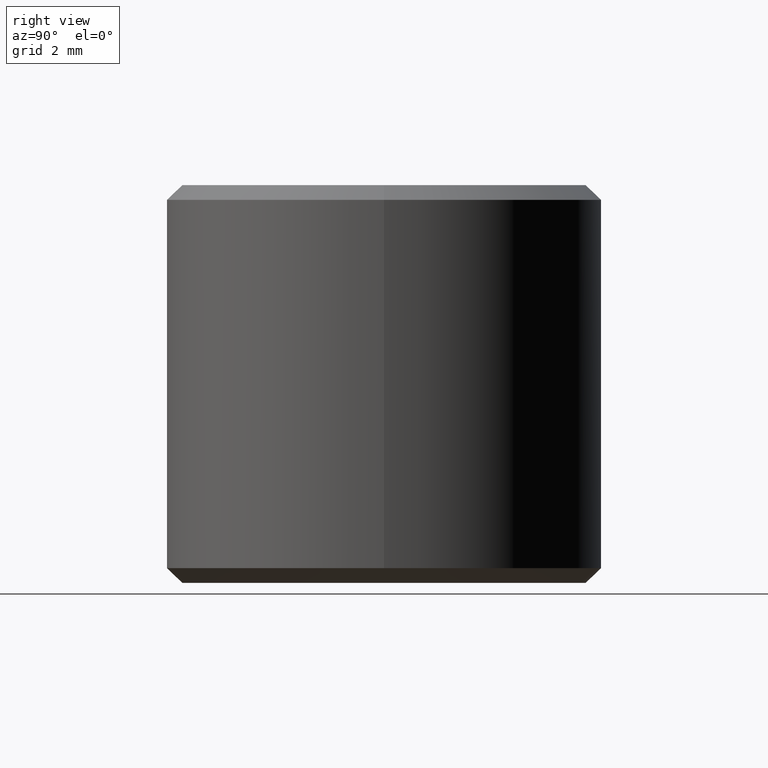
[diagram: clean part render]
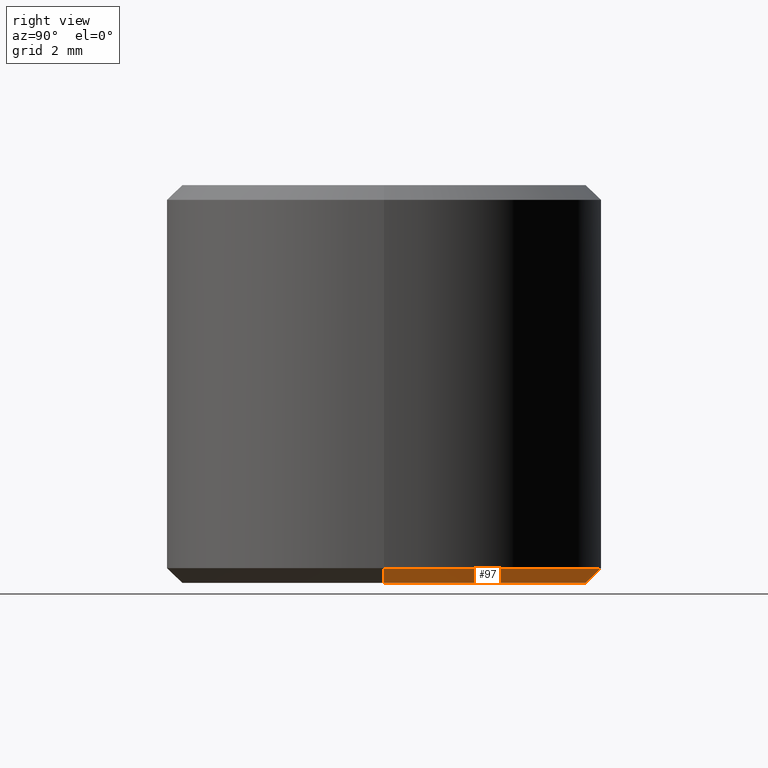
[diagram: same view with one face highlighted and labeled with its STEP entity id]
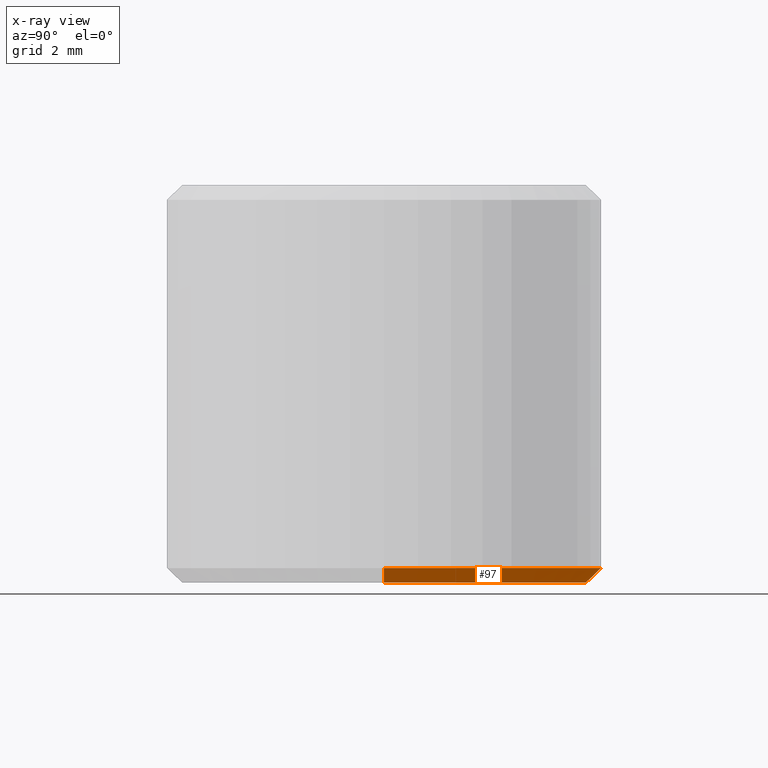
[diagram: x-ray of the same camera — body ghosted, the highlighted face saturated]
A machine part, right view. The second image highlights one B-rep face of the part: STEP entity #97.
The next image is the same camera in x-ray: the body ghosted, the highlighted face saturated — about 0% of this face is hidden behind the body in this view.
In plain terms, the highlighted conical surface has half-angle 45 deg.
Its self-contained STEP definition (entity closure, byte-faithful):
#4 = ORIENTED_EDGE ( 'NONE', *, *, #283, .F. ) ;
#7 = CARTESIAN_POINT ( 'NONE',  ( 0.0000000000000000000, 0.1111111111113758500, 2.255140518769849200E-013 ) ) ;
#10 = CARTESIAN_POINT ( 'NONE',  ( 5.999999999999958300, 0.1111111111113758500, 0.4074074074076027300 ) ) ;
#14 = ORIENTED_EDGE ( 'NONE', *, *, #251, .T. ) ;
#26 = VECTOR ( 'NONE', #225, 1000.000000000000000 ) ;
#31 = DIRECTION ( 'NONE',  ( -0.0000000000000000000, -0.0000000000000000000, 1.000000000000000000 ) ) ;
#39 = VERTEX_POINT ( 'NONE', #10 ) ;
#43 = EDGE_CURVE ( 'NONE', #206, #39, #44, .T. ) ;
#44 = LINE ( 'NONE', #338, #269 ) ;
#48 = CARTESIAN_POINT ( 'NONE',  ( -5.592592592592581000, 0.1111111111113765600, 2.255140518769849200E-013 ) ) ;
#52 = ORIENTED_EDGE ( 'NONE', *, *, #43, .F. ) ;
#70 = ORIENTED_EDGE ( 'NONE', *, *, #336, .T. ) ;
#72 = DIRECTION ( 'NONE',  ( 0.7071067811865474600, 0.0000000000000000000, 0.7071067811865475700 ) ) ;
#95 = AXIS2_PLACEMENT_3D ( 'NONE', #7, #31, #140 ) ;
#97 = ADVANCED_FACE ( 'NONE', ( #315 ), #158, .T. ) ;
#100 = DIRECTION ( 'NONE',  ( -0.0000000000000000000, -0.0000000000000000000, 1.000000000000000000 ) ) ;
#117 = CARTESIAN_POINT ( 'NONE',  ( 5.592592592592581000, 0.1111111111113758500, 2.255140518769849200E-013 ) ) ;
#140 = DIRECTION ( 'NONE',  ( 1.000000000000000000, 0.0000000000000000000, 0.0000000000000000000 ) ) ;
#141 = AXIS2_PLACEMENT_3D ( 'NONE', #153, #261, #293 ) ;
#153 = CARTESIAN_POINT ( 'NONE',  ( 0.0000000000000000000, 0.1111111111113758500, 0.4074074074076027300 ) ) ;
#157 = EDGE_LOOP ( 'NONE', ( #14, #70, #4, #52 ) ) ;
#158 = CONICAL_SURFACE ( 'NONE', #278, 5.999999999999958300, 0.7853981633974482800 ) ;
#162 = VERTEX_POINT ( 'NONE', #48 ) ;
#171 = LINE ( 'NONE', #244, #26 ) ;
#201 = CIRCLE ( 'NONE', #95, 5.592592592592581000 ) ;
#206 = VERTEX_POINT ( 'NONE', #117 ) ;
#213 = CARTESIAN_POINT ( 'NONE',  ( 0.0000000000000000000, 0.1111111111113758500, 0.4074074074076027300 ) ) ;
#225 = DIRECTION ( 'NONE',  ( -0.7071067811865474600, 8.659560562354931600E-017, 0.7071067811865475700 ) ) ;
#244 = CARTESIAN_POINT ( 'NONE',  ( -5.999999999999958300, 0.1111111111113765900, 0.4074074074076027300 ) ) ;
#251 = EDGE_CURVE ( 'NONE', #206, #162, #201, .T. ) ;
#261 = DIRECTION ( 'NONE',  ( -0.0000000000000000000, -0.0000000000000000000, 1.000000000000000000 ) ) ;
#264 = CARTESIAN_POINT ( 'NONE',  ( -5.999999999999959100, 0.1111111111113765900, 0.4074074074076027300 ) ) ;
#269 = VECTOR ( 'NONE', #72, 1000.000000000000000 ) ;
#278 = AXIS2_PLACEMENT_3D ( 'NONE', #213, #100, #284 ) ;
#283 = EDGE_CURVE ( 'NONE', #39, #286, #327, .T. ) ;
#284 = DIRECTION ( 'NONE',  ( 1.000000000000000000, 0.0000000000000000000, 0.0000000000000000000 ) ) ;
#286 = VERTEX_POINT ( 'NONE', #264 ) ;
#293 = DIRECTION ( 'NONE',  ( 1.000000000000000000, 0.0000000000000000000, 0.0000000000000000000 ) ) ;
#315 = FACE_OUTER_BOUND ( 'NONE', #157, .T. ) ;
#327 = CIRCLE ( 'NONE', #141, 5.999999999999958300 ) ;
#336 = EDGE_CURVE ( 'NONE', #162, #286, #171, .T. ) ;
#338 = CARTESIAN_POINT ( 'NONE',  ( 5.999999999999958300, 0.1111111111113758500, 0.4074074074076027300 ) ) ;